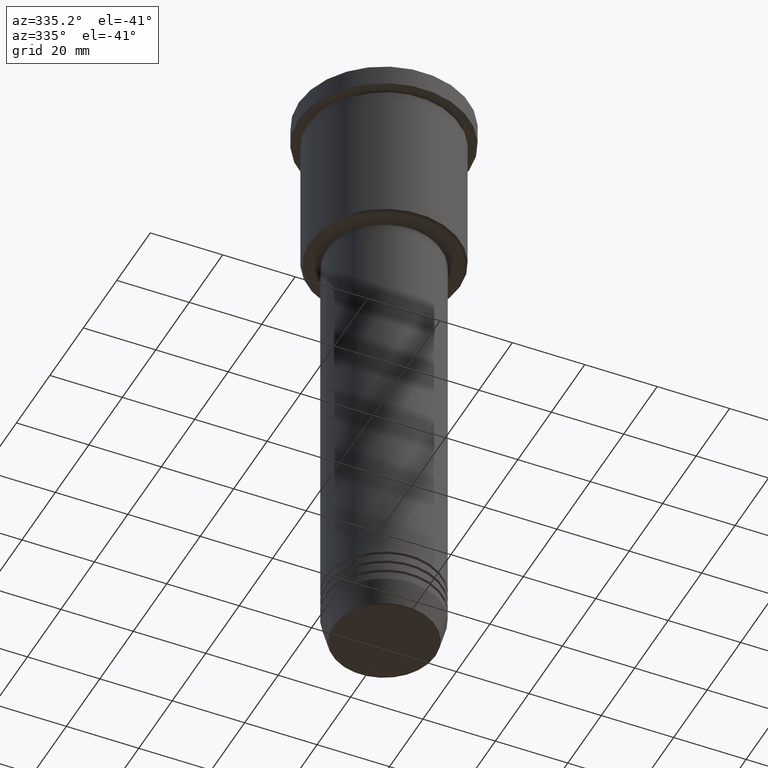
[diagram: clean part render]
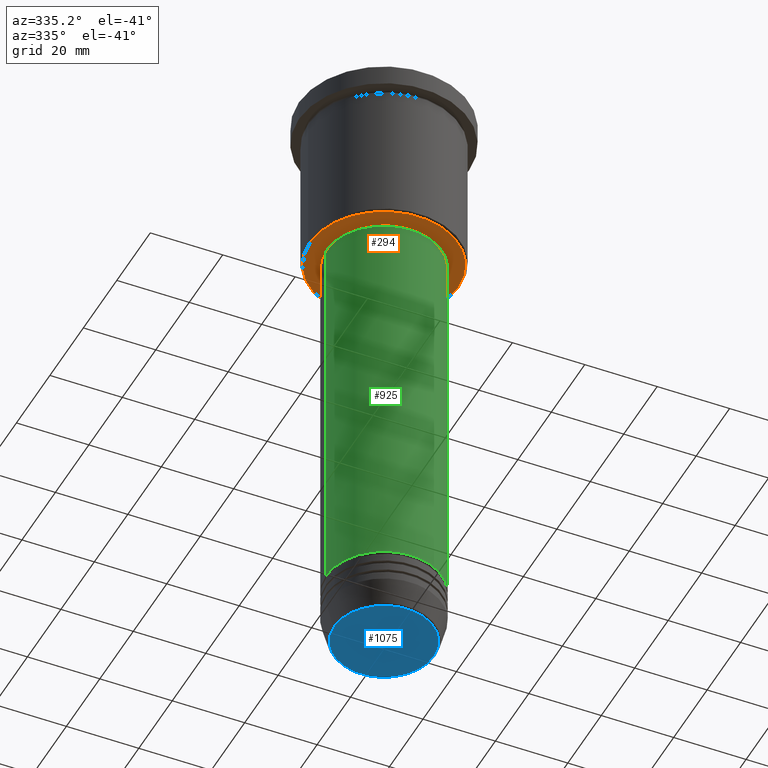
[diagram: same view with three faces highlighted in distinct colors, each labeled with its STEP entity id]
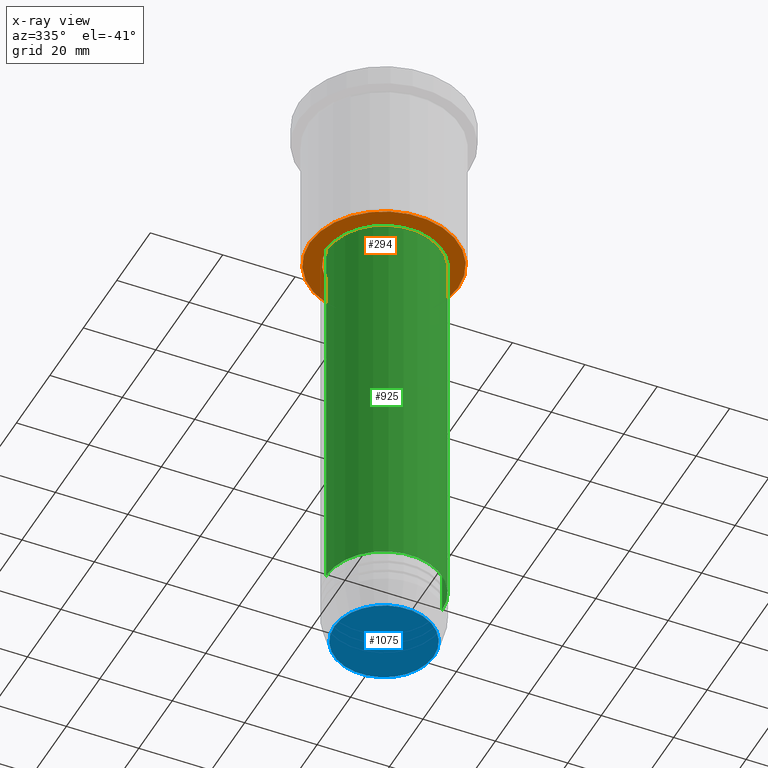
[diagram: x-ray of the same camera — body ghosted, the three highlighted faces saturated]
A machine part, auxiliary view with three faces highlighted in distinct colors.
The next image is the same camera in x-ray (body ghosted, the three faces saturated) — at least one of them is partly hidden behind the body in this view.
Their STEP definitions:

[orange] entity #294 — the highlighted planar face has unit normal (0, 0, -1).
#9 = ORIENTED_EDGE ( 'NONE', *, *, #1025, .T. ) ;
#61 = EDGE_LOOP ( 'NONE', ( #9, #85 ) ) ;
#85 = ORIENTED_EDGE ( 'NONE', *, *, #1139, .T. ) ;
#118 = CARTESIAN_POINT ( 'NONE',  ( 0.000000000000000000, 0.000000000000000000, -46.00000000000000000 ) ) ;
#168 = PLANE ( 'NONE',  #918 ) ;
#197 = VERTEX_POINT ( 'NONE', #933 ) ;
#198 = DIRECTION ( 'NONE',  ( -1.000000000000000000, 0.000000000000000000, 0.000000000000000000 ) ) ;
#207 = CIRCLE ( 'NONE', #614, 15.50000000000000000 ) ;
#209 = DIRECTION ( 'NONE',  ( -0.000000000000000000, -0.000000000000000000, 1.000000000000000000 ) ) ;
#233 = FACE_BOUND ( 'NONE', #707, .T. ) ;
#294 = ADVANCED_FACE ( 'NONE', ( #1056, #233 ), #168, .T. ) ;
#331 = ORIENTED_EDGE ( 'NONE', *, *, #440, .T. ) ;
#362 = AXIS2_PLACEMENT_3D ( 'NONE', #853, #209, #1127 ) ;
#370 = CARTESIAN_POINT ( 'NONE',  ( -15.50000000000000000, 1.898202538678397557E-15, -46.00000000000000000 ) ) ;
#375 = DIRECTION ( 'NONE',  ( -0.000000000000000000, -0.000000000000000000, 1.000000000000000000 ) ) ;
#440 = EDGE_CURVE ( 'NONE', #500, #524, #207, .T. ) ;
#453 = CARTESIAN_POINT ( 'NONE',  ( 0.000000000000000000, 0.000000000000000000, -46.00000000000000000 ) ) ;
#500 = VERTEX_POINT ( 'NONE', #370 ) ;
#512 = VERTEX_POINT ( 'NONE', #1098 ) ;
#524 = VERTEX_POINT ( 'NONE', #1012 ) ;
#563 = DIRECTION ( 'NONE',  ( 0.000000000000000000, 0.000000000000000000, -1.000000000000000000 ) ) ;
#614 = AXIS2_PLACEMENT_3D ( 'NONE', #453, #375, #851 ) ;
#631 = DIRECTION ( 'NONE',  ( 0.000000000000000000, 0.000000000000000000, -1.000000000000000000 ) ) ;
#697 = EDGE_CURVE ( 'NONE', #524, #500, #940, .T. ) ;
#707 = EDGE_LOOP ( 'NONE', ( #1174, #331 ) ) ;
#722 = CIRCLE ( 'NONE', #1164, 20.49999999999998934 ) ;
#783 = DIRECTION ( 'NONE',  ( -1.000000000000000000, 0.000000000000000000, 0.000000000000000000 ) ) ;
#790 = AXIS2_PLACEMENT_3D ( 'NONE', #1152, #1030, #783 ) ;
#811 = DIRECTION ( 'NONE',  ( -1.000000000000000000, 0.000000000000000000, -0.000000000000000000 ) ) ;
#851 = DIRECTION ( 'NONE',  ( 1.000000000000000000, 0.000000000000000000, 0.000000000000000000 ) ) ;
#853 = CARTESIAN_POINT ( 'NONE',  ( 0.000000000000000000, 0.000000000000000000, -46.00000000000000000 ) ) ;
#904 = CARTESIAN_POINT ( 'NONE',  ( 0.000000000000000000, 21.00000000000000000, -46.00000000000000000 ) ) ;
#918 = AXIS2_PLACEMENT_3D ( 'NONE', #904, #631, #811 ) ;
#933 = CARTESIAN_POINT ( 'NONE',  ( 20.49999999999998934, 0.000000000000000000, -46.00000000000000000 ) ) ;
#940 = CIRCLE ( 'NONE', #362, 15.50000000000000000 ) ;
#1010 = CIRCLE ( 'NONE', #790, 20.49999999999998934 ) ;
#1012 = CARTESIAN_POINT ( 'NONE',  ( 15.50000000000000000, 0.000000000000000000, -46.00000000000000000 ) ) ;
#1025 = EDGE_CURVE ( 'NONE', #197, #512, #1010, .T. ) ;
#1030 = DIRECTION ( 'NONE',  ( 0.000000000000000000, 0.000000000000000000, -1.000000000000000000 ) ) ;
#1056 = FACE_OUTER_BOUND ( 'NONE', #61, .T. ) ;
#1098 = CARTESIAN_POINT ( 'NONE',  ( -20.49999999999998934, 2.541142108230757480E-15, -46.00000000000000000 ) ) ;
#1127 = DIRECTION ( 'NONE',  ( 1.000000000000000000, 0.000000000000000000, 0.000000000000000000 ) ) ;
#1139 = EDGE_CURVE ( 'NONE', #512, #197, #722, .T. ) ;
#1152 = CARTESIAN_POINT ( 'NONE',  ( 0.000000000000000000, 0.000000000000000000, -46.00000000000000000 ) ) ;
#1164 = AXIS2_PLACEMENT_3D ( 'NONE', #118, #563, #198 ) ;
#1174 = ORIENTED_EDGE ( 'NONE', *, *, #697, .T. ) ;

[blue] entity #1075 — the highlighted planar face has unit normal (0, -0, 1).
#3 = DIRECTION ( 'NONE',  ( 1.000000000000000000, 0.000000000000000000, 0.000000000000000000 ) ) ;
#33 = EDGE_CURVE ( 'NONE', #538, #371, #93, .T. ) ;
#71 = DIRECTION ( 'NONE',  ( 0.000000000000000000, -0.000000000000000000, 1.000000000000000000 ) ) ;
#76 = AXIS2_PLACEMENT_3D ( 'NONE', #430, #808, #346 ) ;
#83 = ORIENTED_EDGE ( 'NONE', *, *, #352, .T. ) ;
#93 = CIRCLE ( 'NONE', #76, 13.74069215899266538 ) ;
#150 = CARTESIAN_POINT ( 'NONE',  ( 0.000000000000000000, 0.000000000000000000, -170.9999999999999716 ) ) ;
#174 = DIRECTION ( 'NONE',  ( 0.000000000000000000, 0.000000000000000000, -1.000000000000000000 ) ) ;
#221 = CARTESIAN_POINT ( 'NONE',  ( 13.74069215899266538, 0.000000000000000000, -170.9999999999999716 ) ) ;
#346 = DIRECTION ( 'NONE',  ( 1.000000000000000000, 0.000000000000000000, 0.000000000000000000 ) ) ;
#352 = EDGE_CURVE ( 'NONE', #371, #538, #961, .T. ) ;
#371 = VERTEX_POINT ( 'NONE', #821 ) ;
#424 = ORIENTED_EDGE ( 'NONE', *, *, #33, .T. ) ;
#430 = CARTESIAN_POINT ( 'NONE',  ( 0.000000000000000000, 0.000000000000000000, -170.9999999999999716 ) ) ;
#447 = CARTESIAN_POINT ( 'NONE',  ( 0.000000000000000000, 0.000000000000000000, -170.9999999999999716 ) ) ;
#538 = VERTEX_POINT ( 'NONE', #221 ) ;
#737 = PLANE ( 'NONE',  #791 ) ;
#791 = AXIS2_PLACEMENT_3D ( 'NONE', #150, #71, #3 ) ;
#793 = DIRECTION ( 'NONE',  ( 1.000000000000000000, 0.000000000000000000, 0.000000000000000000 ) ) ;
#808 = DIRECTION ( 'NONE',  ( 0.000000000000000000, 0.000000000000000000, -1.000000000000000000 ) ) ;
#821 = CARTESIAN_POINT ( 'NONE',  ( -13.74069215899266538, 1.712322416342416577E-15, -170.9999999999999716 ) ) ;
#825 = FACE_OUTER_BOUND ( 'NONE', #1043, .T. ) ;
#961 = CIRCLE ( 'NONE', #1110, 13.74069215899266538 ) ;
#1043 = EDGE_LOOP ( 'NONE', ( #424, #83 ) ) ;
#1075 = ADVANCED_FACE ( 'NONE', ( #825 ), #737, .F. ) ;
#1110 = AXIS2_PLACEMENT_3D ( 'NONE', #447, #174, #793 ) ;

[green] entity #925 — the highlighted cylindrical surface (partial cylindrical patch) has radius 16 mm, axis along (-0, -0, 1).
#18 = ORIENTED_EDGE ( 'NONE', *, *, #142, .T. ) ;
#52 = LINE ( 'NONE', #1128, #327 ) ;
#69 = ORIENTED_EDGE ( 'NONE', *, *, #373, .F. ) ;
#78 = VECTOR ( 'NONE', #985, 1000.000000000000000 ) ;
#142 = EDGE_CURVE ( 'NONE', #1123, #242, #52, .T. ) ;
#167 = AXIS2_PLACEMENT_3D ( 'NONE', #870, #667, #406 ) ;
#183 = CIRCLE ( 'NONE', #867, 16.00000000000000000 ) ;
#237 = LINE ( 'NONE', #604, #78 ) ;
#242 = VERTEX_POINT ( 'NONE', #508 ) ;
#257 = DIRECTION ( 'NONE',  ( 1.000000000000000000, 0.000000000000000000, 0.000000000000000000 ) ) ;
#283 = EDGE_CURVE ( 'NONE', #891, #242, #309, .T. ) ;
#293 = CARTESIAN_POINT ( 'NONE',  ( 0.000000000000000000, 0.000000000000000000, -154.9999999999999716 ) ) ;
#308 = EDGE_LOOP ( 'NONE', ( #69, #803, #18, #595 ) ) ;
#309 = CIRCLE ( 'NONE', #454, 16.00000000000000000 ) ;
#327 = VECTOR ( 'NONE', #764, 1000.000000000000000 ) ;
#337 = CARTESIAN_POINT ( 'NONE',  ( -16.00000000000000000, 1.959434878635765131E-15, -154.9999999999999716 ) ) ;
#373 = EDGE_CURVE ( 'NONE', #945, #891, #237, .T. ) ;
#406 = DIRECTION ( 'NONE',  ( 1.000000000000000000, 0.000000000000000000, 0.000000000000000000 ) ) ;
#454 = AXIS2_PLACEMENT_3D ( 'NONE', #685, #784, #257 ) ;
#491 = CYLINDRICAL_SURFACE ( 'NONE', #167, 16.00000000000000000 ) ;
#508 = CARTESIAN_POINT ( 'NONE',  ( 16.00000000000000000, 0.000000000000000000, -47.00000000000000711 ) ) ;
#595 = ORIENTED_EDGE ( 'NONE', *, *, #283, .F. ) ;
#604 = CARTESIAN_POINT ( 'NONE',  ( -16.00000000000000000, 1.959434878635765131E-15, 0.000000000000000000 ) ) ;
#620 = CARTESIAN_POINT ( 'NONE',  ( -16.00000000000000000, 1.959434878635765131E-15, -47.00000000000000711 ) ) ;
#663 = DIRECTION ( 'NONE',  ( 1.000000000000000000, 0.000000000000000000, 0.000000000000000000 ) ) ;
#667 = DIRECTION ( 'NONE',  ( -0.000000000000000000, -0.000000000000000000, 1.000000000000000000 ) ) ;
#685 = CARTESIAN_POINT ( 'NONE',  ( 0.000000000000000000, 0.000000000000000000, -47.00000000000000711 ) ) ;
#764 = DIRECTION ( 'NONE',  ( -0.000000000000000000, -0.000000000000000000, 1.000000000000000000 ) ) ;
#784 = DIRECTION ( 'NONE',  ( -0.000000000000000000, -0.000000000000000000, 1.000000000000000000 ) ) ;
#803 = ORIENTED_EDGE ( 'NONE', *, *, #814, .T. ) ;
#814 = EDGE_CURVE ( 'NONE', #945, #1123, #183, .T. ) ;
#867 = AXIS2_PLACEMENT_3D ( 'NONE', #293, #1016, #663 ) ;
#870 = CARTESIAN_POINT ( 'NONE',  ( 0.000000000000000000, 0.000000000000000000, 0.000000000000000000 ) ) ;
#891 = VERTEX_POINT ( 'NONE', #620 ) ;
#925 = ADVANCED_FACE ( 'NONE', ( #949 ), #491, .T. ) ;
#945 = VERTEX_POINT ( 'NONE', #337 ) ;
#949 = FACE_OUTER_BOUND ( 'NONE', #308, .T. ) ;
#985 = DIRECTION ( 'NONE',  ( -0.000000000000000000, -0.000000000000000000, 1.000000000000000000 ) ) ;
#1016 = DIRECTION ( 'NONE',  ( -0.000000000000000000, -0.000000000000000000, 1.000000000000000000 ) ) ;
#1022 = CARTESIAN_POINT ( 'NONE',  ( 16.00000000000000000, 0.000000000000000000, -154.9999999999999716 ) ) ;
#1123 = VERTEX_POINT ( 'NONE', #1022 ) ;
#1128 = CARTESIAN_POINT ( 'NONE',  ( 16.00000000000000000, 0.000000000000000000, 0.000000000000000000 ) ) ;